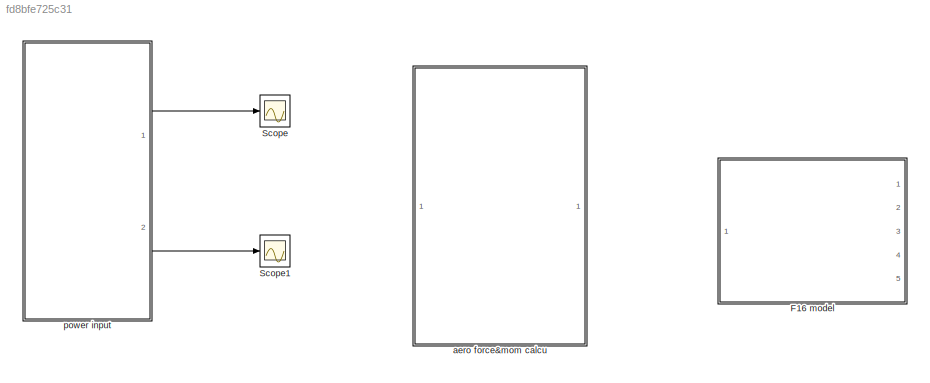
MODEL slx_fd8bfe725c31
KIND model
CONFIG AbsTol = auto
CONFIG EnableMultiTasking = on
CONFIG FixedStep = 0.001
CONFIG MaxStep = auto
CONFIG MinStep = auto
CONFIG RelTol = 1e-3
CONFIG SampleTimeConstraint = Unconstrained
CONFIG Solver = FixedStepAuto
CONFIG SolverName = FixedStepAuto
CONFIG StartTime = 0.0
CONFIG StopTime = 10.0
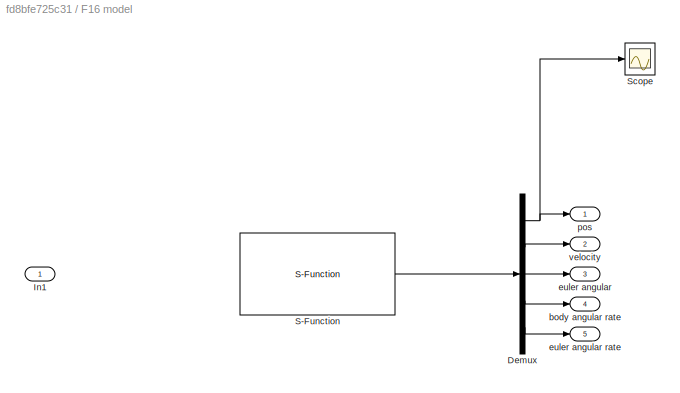
BLOCK [SubSystem] F16 model 
  Ports = [1, 5]
  RequestExecContextInheritance = off
BLOCK [Demux] F16 model /Demux
  Outputs = 5
  Ports = [1, 5]
BLOCK [Inport] F16 model /In1
BLOCK [S-Function] F16 model /S-Function
  EnableBusSupport = off
  FunctionName = F16_dynamic
  Parameters = para
  Ports = [1, 1]
  SFcnIsStateOwnerBlock = off
  SFunctionDeploymentMode = off
BLOCK [Scope] F16 model /Scope
  Floating = off
  NumInputPorts = 1
  Ports = [1]
  ScopeSpecificationString = Simulink.scopes.TimeScopeBlockCfg('CurrentConfiguration', extmgr.ConfigurationSet(extmgr.Configuration('Core','General UI',true),extmgr.Configuration('Core','Source UI',true),extmgr.Configuration('Sources','WiredSimulink',true,'DataLoggingVariableName','ScopeData1'),extmgr.Configuration('Visuals','Time Domain',true),extmgr.Configuration('Tools','Plot Navigation',true),extmgr.Configuration('Tools',...<+40ch>
BLOCK [Outport] F16 model /body angular rate
  Port = 4
  PortDimensions = 3
BLOCK [Outport] F16 model /euler angular
  Port = 3
  PortDimensions = 3
BLOCK [Outport] F16 model /euler angular rate 
  Port = 5
  PortDimensions = 3
BLOCK [Outport] F16 model /pos
  PortDimensions = 3
BLOCK [Outport] F16 model /velocity
  Port = 2
  PortDimensions = 3
BLOCK [Scope] Scope
  Floating = off
  NumInputPorts = 1
  Ports = [1]
  ScopeSpecificationString = Simulink.scopes.TimeScopeBlockCfg('CurrentConfiguration', extmgr.ConfigurationSet(extmgr.Configuration('Core','General UI',true),extmgr.Configuration('Core','Source UI',true),extmgr.Configuration('Sources','WiredSimulink',true),extmgr.Configuration('Visuals','Time Domain',true,'SerializedDisplays',{struct('MinYLimReal','9.00000','MaxYLimReal','11.00000','YLabelReal','','MinYLimMag','9.00000','MaxY...<+1378ch>
BLOCK [Scope] Scope1
  Floating = off
  NumInputPorts = 1
  Ports = [1]
  ScopeSpecificationString = Simulink.scopes.TimeScopeBlockCfg('CurrentConfiguration', extmgr.ConfigurationSet(extmgr.Configuration('Core','General UI',true),extmgr.Configuration('Core','Source UI',true),extmgr.Configuration('Sources','WiredSimulink',true,'DataLoggingVariableName','ScopeData1'),extmgr.Configuration('Visuals','Time Domain',true,'SerializedDisplays',{struct('MinYLimReal','-0.02182','MaxYLimReal','0.19635','YLab...<+1474ch>
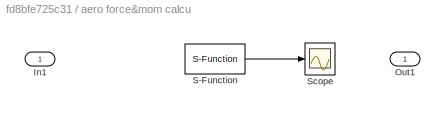
BLOCK [SubSystem] aero force&mom calcu
  Ports = [1, 1]
  RequestExecContextInheritance = off
BLOCK [Inport] aero force&mom calcu/In1
BLOCK [Outport] aero force&mom calcu/Out1
BLOCK [S-Function] aero force&mom calcu/S-Function
  EnableBusSupport = off
  FunctionName = aerofmcal
  Parameters = para
  Ports = [1, 1]
  SFcnIsStateOwnerBlock = off
  SFunctionDeploymentMode = off
BLOCK [Scope] aero force&mom calcu/Scope
  Floating = off
  NumInputPorts = 1
  Ports = [1]
  ScopeSpecificationString = Simulink.scopes.TimeScopeBlockCfg('CurrentConfiguration', extmgr.ConfigurationSet(extmgr.Configuration('Core','General UI',true),extmgr.Configuration('Core','Source UI',true),extmgr.Configuration('Sources','WiredSimulink',true,'DataLoggingVariableName','ScopeData2'),extmgr.Configuration('Visuals','Time Domain',true,'SerializedDisplays',{struct('MinYLimReal','0.208','MaxYLimReal','0.408','YLabelRea...<+1714ch>
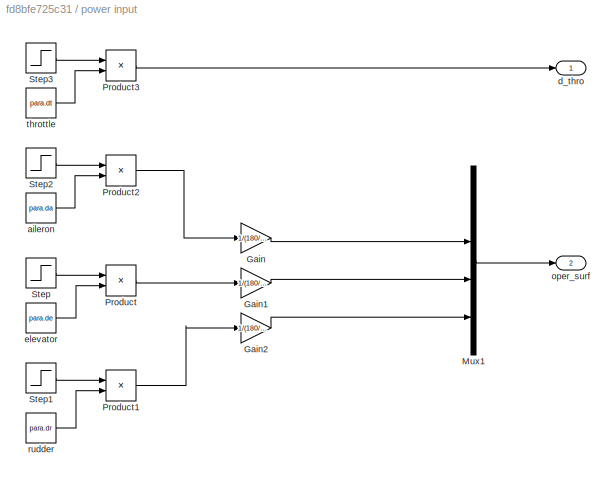
BLOCK [SubSystem] power input 
  Ports = [0, 2]
  RequestExecContextInheritance = off
BLOCK [Constant] power input / aileron
  Value = para.da
BLOCK [Gain] power input /Gain
  Gain = 1/(180/pi)
BLOCK [Gain] power input /Gain1
  Gain = 1/(180/pi)
BLOCK [Gain] power input /Gain2
  Gain = 1/(180/pi)
BLOCK [Mux] power input /Mux1
  DisplayOption = bar
  Ports = [4, 1]
BLOCK [Product] power input /Product
  Ports = [2, 1]
BLOCK [Product] power input /Product1
  Ports = [2, 1]
BLOCK [Product] power input /Product2
  Ports = [2, 1]
BLOCK [Product] power input /Product3
  Ports = [2, 1]
BLOCK [Step] power input /Step
  SampleTime = 0
  Time = 0
BLOCK [Step] power input /Step1
  SampleTime = 0
  Time = 0
BLOCK [Step] power input /Step2
  SampleTime = 0
  Time = 0
BLOCK [Step] power input /Step3
  SampleTime = 0
  Time = 0
BLOCK [Outport] power input /d_thro
BLOCK [Constant] power input /elevator
  Value = para.de
BLOCK [Outport] power input /oper_surf
  Port = 2
BLOCK [Constant] power input /rudder
  Value = para.dr
BLOCK [Constant] power input /throttle
  Value = para.dt
  VectorParams1D = off
NET F16 model /Demux:1 -> F16 model /Scope:1, F16 model /pos:1
LINE F16 model /Demux:2 -> F16 model /velocity:1
LINE F16 model /Demux:3 -> F16 model /euler angular:1
LINE F16 model /Demux:4 -> F16 model /body angular rate:1
LINE F16 model /Demux:5 -> F16 model /euler angular rate :1
LINE F16 model /S-Function:1 -> F16 model /Demux:1
LINE aero force&mom calcu/S-Function:1 -> aero force&mom calcu/Scope:1
LINE power input / aileron:1 -> power input /Product2:2
LINE power input /Gain1:1 -> power input /Mux1:3
LINE power input /Gain2:1 -> power input /Mux1:4
LINE power input /Gain:1 -> power input /Mux1:2
LINE power input /Mux1:1 -> power input /oper_surf:1
LINE power input /Product1:1 -> power input /Gain2:1
LINE power input /Product2:1 -> power input /Gain:1
LINE power input /Product3:1 -> power input /d_thro:1
LINE power input /Product:1 -> power input /Gain1:1
LINE power input /Step1:1 -> power input /Product1:1
LINE power input /Step2:1 -> power input /Product2:1
LINE power input /Step3:1 -> power input /Product3:1
LINE power input /Step:1 -> power input /Product:1
LINE power input /elevator:1 -> power input /Product:2
LINE power input /rudder:1 -> power input /Product1:2
LINE power input /throttle:1 -> power input /Product3:2
LINE power input :1 -> Scope:1
LINE power input :2 -> Scope1:1
note: NET lines group one-source signal fan-out (src -> all destinations, sorted); 1:1 wires keep LINE
